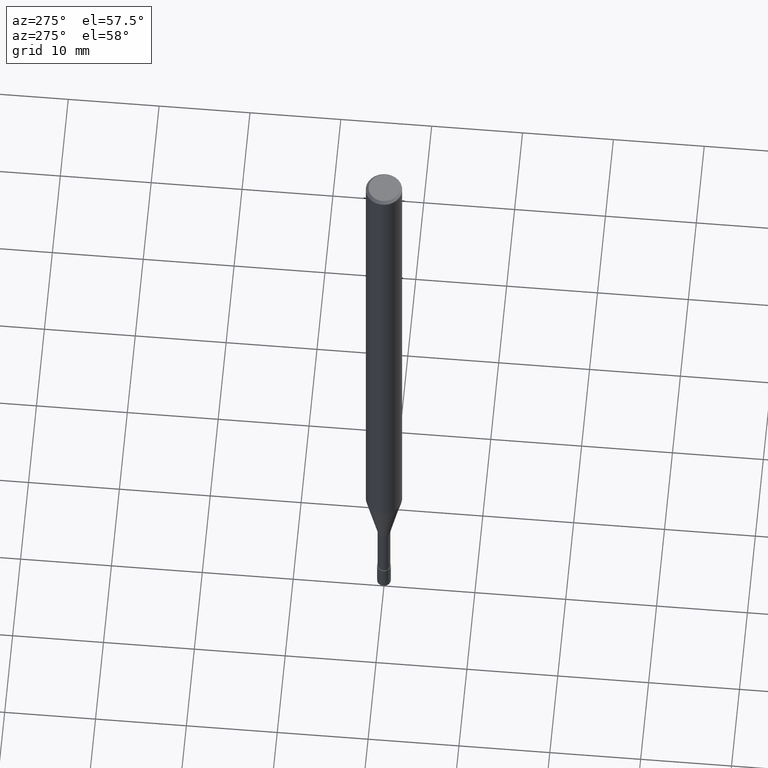
[diagram: clean part render]
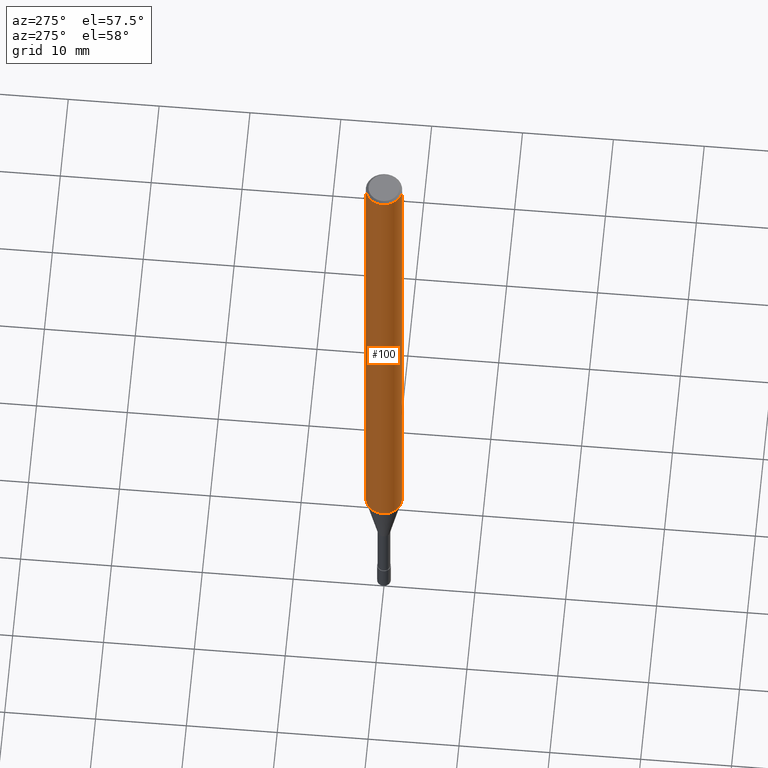
[diagram: same view with one face highlighted and labeled with its STEP entity id]
A machine part, auxiliary view. The second image highlights one B-rep face of the part: STEP entity #100.
In plain terms, the highlighted cylindrical surface (edge-blend (fillet) strip) has radius 2 mm, axis along (-0, -0, 1).
Its self-contained STEP definition (entity closure, byte-faithful):
#100=ADVANCED_FACE('',(#238),#239,.T.);
#106=VERTEX_POINT('',#246);
#146=EDGE_CURVE('',#106,#164,#292,.T.);
#150=VERTEX_POINT('',#297);
#154=EDGE_CURVE('',#168,#150,#302,.T.);
#160=EDGE_CURVE('',#106,#150,#308,.T.);
#164=VERTEX_POINT('',#313);
#168=VERTEX_POINT('',#317);
#206=EDGE_CURVE('',#164,#168,#359,.T.);
#238=FACE_OUTER_BOUND('',#387,.T.);
#239=CYLINDRICAL_SURFACE('',#388,2.0);
#246=CARTESIAN_POINT('',(2.44921270764475E-016,-2.0,-63.312));
#292=LINE('',#453,#454);
#297=CARTESIAN_POINT('',(0.0,2.0,-63.312));
#302=LINE('',#465,#466);
#308=CIRCLE('',#475,2.0);
#313=CARTESIAN_POINT('',(2.44921270764475E-016,-2.0,-0.299999999999997));
#317=CARTESIAN_POINT('',(0.0,2.0,-0.299999999999997));
#359=CIRCLE('',#536,2.0);
#387=EDGE_LOOP('',(#558,#559,#560,#561));
#388=AXIS2_PLACEMENT_3D('',#562,#563,#564);
#453=CARTESIAN_POINT('',(2.44921270764475E-016,-2.0,-31.806));
#454=VECTOR('',#626,1.0);
#465=CARTESIAN_POINT('',(-2.44921270764475E-016,2.0,-31.806));
#466=VECTOR('',#641,1.0);
#475=AXIS2_PLACEMENT_3D('',#643,#644,#645);
#536=AXIS2_PLACEMENT_3D('',#710,#711,#712);
#558=ORIENTED_EDGE('',*,*,#154,.T.);
#559=ORIENTED_EDGE('',*,*,#160,.F.);
#560=ORIENTED_EDGE('',*,*,#146,.T.);
#561=ORIENTED_EDGE('',*,*,#206,.T.);
#562=CARTESIAN_POINT('',(0.0,0.0,-31.806));
#563=DIRECTION('',(-0.0,-0.0,1.0));
#564=DIRECTION('',(0.0,1.0,0.0));
#626=DIRECTION('',(-0.0,-0.0,1.0));
#641=DIRECTION('',(0.0,0.0,-1.0));
#643=CARTESIAN_POINT('',(0.0,0.0,-63.312));
#644=DIRECTION('',(0.0,0.0,-1.0));
#645=DIRECTION('',(0.0,1.0,0.0));
#710=CARTESIAN_POINT('',(0.0,0.0,-0.299999999999997));
#711=DIRECTION('',(0.0,0.0,-1.0));
#712=DIRECTION('',(0.0,1.0,0.0));